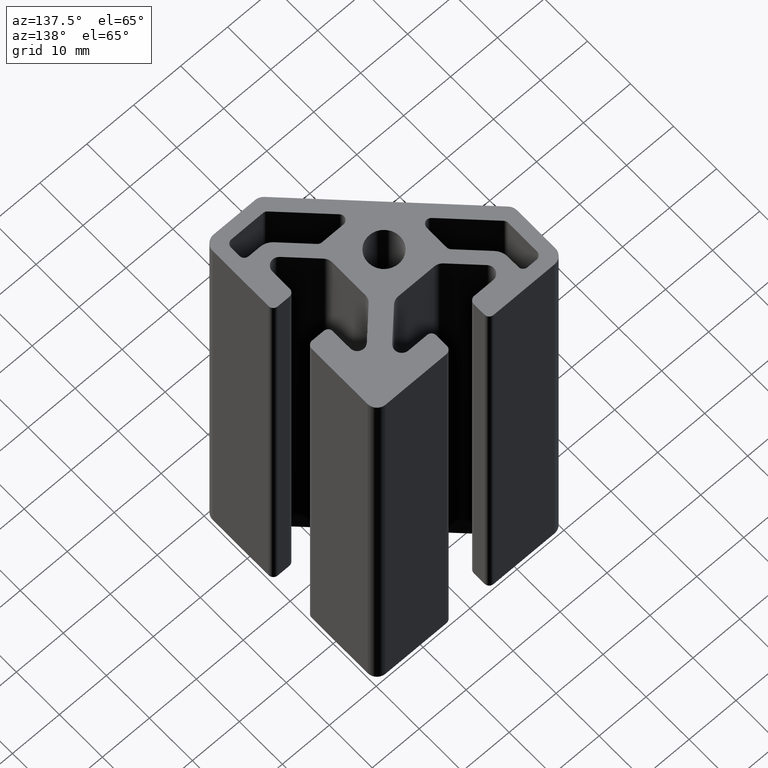
[diagram: clean part render]
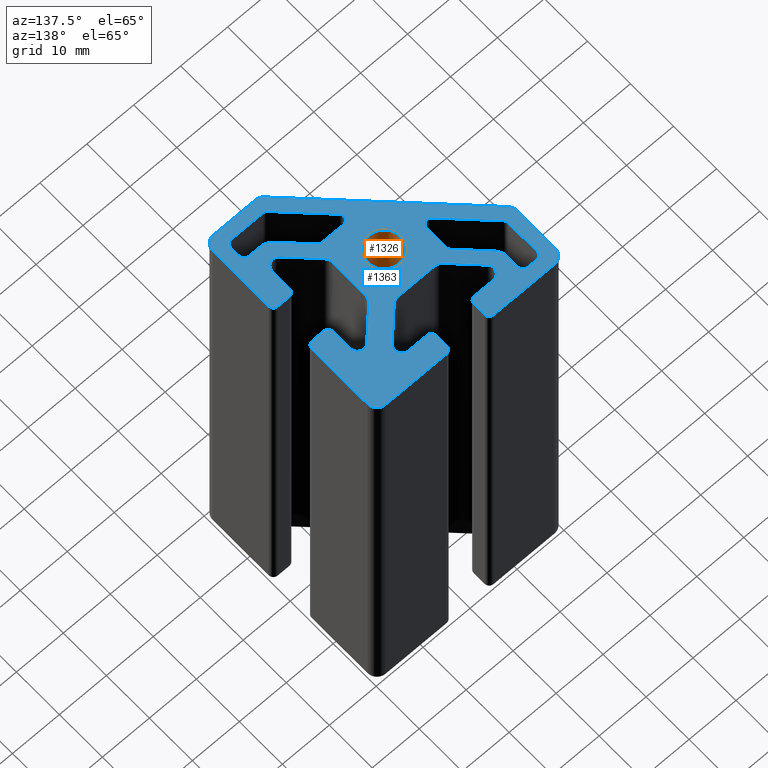
[diagram: same view with the hole feature highlighted: cylindrical wall and planar end face, labeled with their STEP entity ids]
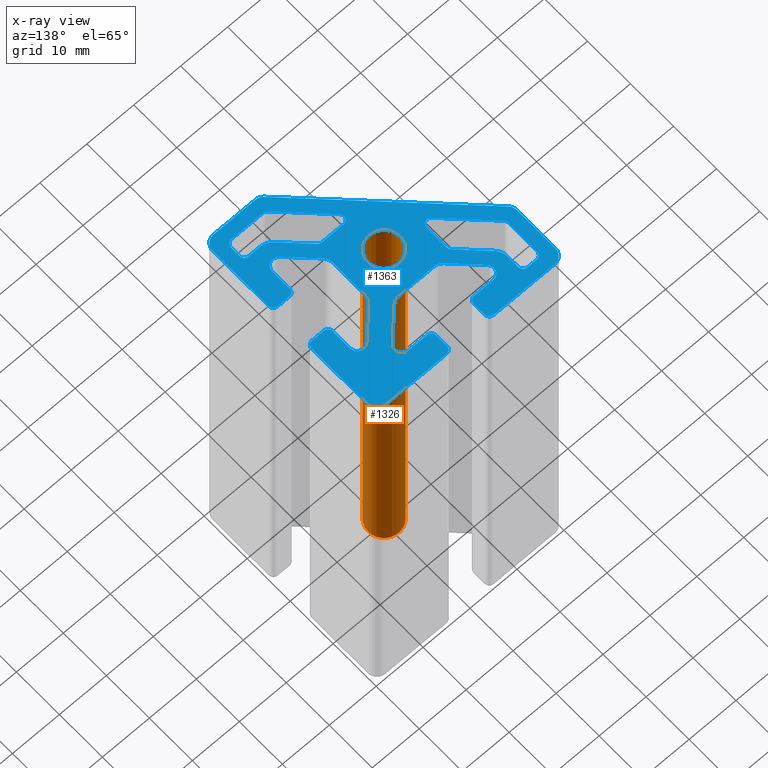
[diagram: x-ray of the same camera — body ghosted, the hole faces saturated]
A machine part, auxiliary view. The highlighted faces form one hole feature of diameter 6.8 mm: the cylindrical wall (entity #1326, orange) and its adjacent planar end face (entity #1363, blue) — they share a circular edge in the B-rep.
The next image is the same camera in x-ray (body ghosted, the hole faces saturated) — the bore reads through the body.
Wall:
#15=FACE_BOUND('',#218,.T.);
#46=CIRCLE('',#1422,3.39999472999694);
#47=CIRCLE('',#1423,3.39999472999694);
#102=CYLINDRICAL_SURFACE('',#1421,3.39999472999694);
#148=FACE_OUTER_BOUND('',#217,.T.);
#217=EDGE_LOOP('',(#963));
#218=EDGE_LOOP('',(#964));
#581=VERTEX_POINT('',#2064);
#582=VERTEX_POINT('',#2066);
#739=EDGE_CURVE('',#581,#581,#46,.T.);
#740=EDGE_CURVE('',#582,#582,#47,.T.);
#963=ORIENTED_EDGE('',*,*,#739,.F.);
#964=ORIENTED_EDGE('',*,*,#740,.F.);
#1326=ADVANCED_FACE('',(#148,#15),#102,.F.);
#1421=AXIS2_PLACEMENT_3D('',#2063,#1656,#1657);
#1422=AXIS2_PLACEMENT_3D('',#2065,#1658,#1659);
#1423=AXIS2_PLACEMENT_3D('',#2067,#1660,#1661);
#1656=DIRECTION('center_axis',(0.,0.,1.));
#1657=DIRECTION('ref_axis',(-1.,0.,0.));
#1658=DIRECTION('center_axis',(0.,0.,-1.));
#1659=DIRECTION('ref_axis',(-1.,0.,0.));
#1660=DIRECTION('center_axis',(0.,0.,1.));
#1661=DIRECTION('ref_axis',(-1.,0.,0.));
#2063=CARTESIAN_POINT('Origin',(0.,0.,0.));
#2064=CARTESIAN_POINT('',(3.39999472999694,-4.16379266320862E-16,100.));
#2065=CARTESIAN_POINT('Origin',(0.,0.,100.));
#2066=CARTESIAN_POINT('',(3.39999472999694,4.16379266320862E-16,0.));
#2067=CARTESIAN_POINT('Origin',(0.,0.,0.));
End face:
#16=FACE_BOUND('',#256,.T.);
#17=FACE_BOUND('',#257,.T.);
#18=FACE_BOUND('',#258,.T.);
#22=CIRCLE('',#1375,2.99999999999999);
#24=CIRCLE('',#1379,0.999999999999996);
#26=CIRCLE('',#1383,1.);
#28=CIRCLE('',#1387,1.00000000000001);
#30=CIRCLE('',#1391,1.);
#32=CIRCLE('',#1395,1.);
#34=CIRCLE('',#1399,1.);
#36=CIRCLE('',#1403,3.);
#38=CIRCLE('',#1407,0.999999999999998);
#40=CIRCLE('',#1411,1.);
#42=CIRCLE('',#1415,0.999999999999999);
#44=CIRCLE('',#1419,1.);
#46=CIRCLE('',#1422,3.39999472999694);
#48=CIRCLE('',#1425,1.);
#50=CIRCLE('',#1428,1.);
#52=CIRCLE('',#1432,1.);
#54=CIRCLE('',#1436,1.4999951119496);
#56=CIRCLE('',#1440,1.99999436835788);
#58=CIRCLE('',#1444,1.99999436835788);
#60=CIRCLE('',#1448,1.4999951119496);
#62=CIRCLE('',#1452,1.00000000000001);
#64=CIRCLE('',#1456,1.);
#66=CIRCLE('',#1460,1.);
#68=CIRCLE('',#1464,1.4999951119496);
#70=CIRCLE('',#1468,1.99999436835787);
#72=CIRCLE('',#1472,1.99999436835787);
#74=CIRCLE('',#1476,1.4999951119496);
#76=CIRCLE('',#1480,1.);
#78=CIRCLE('',#1484,1.);
#80=CIRCLE('',#1487,2.);
#82=CIRCLE('',#1491,1.99999999999999);
#84=CIRCLE('',#1497,2.);
#85=CIRCLE('',#1498,2.);
#86=CIRCLE('',#1499,2.);
#185=FACE_OUTER_BOUND('',#255,.T.);
#255=EDGE_LOOP('',(#1109,#1110,#1111,#1112,#1113,#1114,#1115,#1116,#1117,
#1118,#1119,#1120,#1121,#1122,#1123,#1124,#1125,#1126,#1127,#1128,#1129,
#1130,#1131,#1132,#1133,#1134,#1135,#1136,#1137,#1138,#1139,#1140,#1141,
#1142,#1143,#1144,#1145,#1146,#1147,#1148,#1149,#1150));
#256=EDGE_LOOP('',(#1151));
#257=EDGE_LOOP('',(#1152,#1153,#1154,#1155,#1156,#1157,#1158,#1159,#1160,
#1161,#1162,#1163));
#258=EDGE_LOOP('',(#1164,#1165,#1166,#1167,#1168,#1169,#1170,#1171,#1172,
#1173,#1174,#1175));
#269=LINE('',#1922,#401);
#274=LINE('',#1936,#406);
#278=LINE('',#1948,#410);
#282=LINE('',#1960,#414);
#286=LINE('',#1972,#418);
#290=LINE('',#1984,#422);
#293=LINE('',#1994,#425);
#298=LINE('',#2008,#430);
#302=LINE('',#2020,#434);
#306=LINE('',#2032,#438);
#310=LINE('',#2044,#442);
#314=LINE('',#2056,#446);
#321=LINE('',#2088,#453);
#325=LINE('',#2100,#457);
#329=LINE('',#2112,#461);
#333=LINE('',#2124,#465);
#337=LINE('',#2136,#469);
#341=LINE('',#2148,#473);
#345=LINE('',#2159,#477);
#349=LINE('',#2172,#481);
#353=LINE('',#2184,#485);
#357=LINE('',#2196,#489);
#361=LINE('',#2208,#493);
#365=LINE('',#2220,#497);
#369=LINE('',#2232,#501);
#373=LINE('',#2244,#505);
#379=LINE('',#2265,#511);
#385=LINE('',#2280,#517);
#388=LINE('',#2286,#520);
#391=LINE('',#2292,#523);
#392=LINE('',#2296,#524);
#393=LINE('',#2299,#525);
#394=LINE('',#2302,#526);
#401=VECTOR('',#1514,2.46446609406725);
#406=VECTOR('',#1527,6.82842712474621);
#410=VECTOR('',#1539,4.64463632763488);
#414=VECTOR('',#1551,11.3137077019713);
#418=VECTOR('',#1563,6.7659577983418);
#422=VECTOR('',#1575,1.99999999999999);
#425=VECTOR('',#1586,2.);
#430=VECTOR('',#1599,2.46446609406725);
#434=VECTOR('',#1611,6.8284271247462);
#438=VECTOR('',#1623,4.64463632763487);
#442=VECTOR('',#1635,11.3137077019713);
#446=VECTOR('',#1647,6.76595779834181);
#453=VECTOR('',#1680,2.5);
#457=VECTOR('',#1692,4.05026433249172);
#461=VECTOR('',#1704,6.86397516417904);
#465=VECTOR('',#1716,7.68629616642033);
#469=VECTOR('',#1728,6.86397516417903);
#473=VECTOR('',#1740,4.05026433249172);
#477=VECTOR('',#1752,2.5);
#481=VECTOR('',#1764,2.5);
#485=VECTOR('',#1776,4.05026433249172);
#489=VECTOR('',#1788,6.86397516417903);
#493=VECTOR('',#1800,7.68629616642033);
#497=VECTOR('',#1812,6.86397516417903);
#501=VECTOR('',#1824,4.05026433249172);
#505=VECTOR('',#1836,2.5);
#511=VECTOR('',#1856,38.3431815781836);
#517=VECTOR('',#1870,13.);
#520=VECTOR('',#1875,13.);
#523=VECTOR('',#1880,8.88727820380154);
#524=VECTOR('',#1885,8.88727438379713);
#525=VECTOR('',#1888,13.);
#526=VECTOR('',#1891,13.);
#533=VERTEX_POINT('',#1920);
#534=VERTEX_POINT('',#1921);
#537=VERTEX_POINT('',#1929);
#539=VERTEX_POINT('',#1935);
#541=VERTEX_POINT('',#1941);
#543=VERTEX_POINT('',#1947);
#545=VERTEX_POINT('',#1953);
#547=VERTEX_POINT('',#1959);
#549=VERTEX_POINT('',#1965);
#551=VERTEX_POINT('',#1971);
#553=VERTEX_POINT('',#1977);
#555=VERTEX_POINT('',#1983);
#557=VERTEX_POINT('',#1992);
#558=VERTEX_POINT('',#1993);
#561=VERTEX_POINT('',#2001);
#563=VERTEX_POINT('',#2007);
#565=VERTEX_POINT('',#2013);
#567=VERTEX_POINT('',#2019);
#569=VERTEX_POINT('',#2025);
#571=VERTEX_POINT('',#2031);
#573=VERTEX_POINT('',#2037);
#575=VERTEX_POINT('',#2043);
#577=VERTEX_POINT('',#2049);
#579=VERTEX_POINT('',#2055);
#581=VERTEX_POINT('',#2064);
#583=VERTEX_POINT('',#2069);
#584=VERTEX_POINT('',#2070);
#587=VERTEX_POINT('',#2078);
#588=VERTEX_POINT('',#2079);
#591=VERTEX_POINT('',#2087);
#593=VERTEX_POINT('',#2093);
#595=VERTEX_POINT('',#2099);
#597=VERTEX_POINT('',#2105);
#599=VERTEX_POINT('',#2111);
#601=VERTEX_POINT('',#2117);
#603=VERTEX_POINT('',#2123);
#605=VERTEX_POINT('',#2129);
#607=VERTEX_POINT('',#2135);
#609=VERTEX_POINT('',#2141);
#611=VERTEX_POINT('',#2147);
#613=VERTEX_POINT('',#2153);
#615=VERTEX_POINT('',#2162);
#616=VERTEX_POINT('',#2163);
#619=VERTEX_POINT('',#2171);
#621=VERTEX_POINT('',#2177);
#623=VERTEX_POINT('',#2183);
#625=VERTEX_POINT('',#2189);
#627=VERTEX_POINT('',#2195);
#629=VERTEX_POINT('',#2201);
#631=VERTEX_POINT('',#2207);
#633=VERTEX_POINT('',#2213);
#635=VERTEX_POINT('',#2219);
#637=VERTEX_POINT('',#2225);
#639=VERTEX_POINT('',#2231);
#641=VERTEX_POINT('',#2237);
#643=VERTEX_POINT('',#2243);
#645=VERTEX_POINT('',#2249);
#647=VERTEX_POINT('',#2255);
#648=VERTEX_POINT('',#2256);
#651=VERTEX_POINT('',#2264);
#653=VERTEX_POINT('',#2270);
#656=VERTEX_POINT('',#2278);
#658=VERTEX_POINT('',#2284);
#660=VERTEX_POINT('',#2290);
#661=VERTEX_POINT('',#2294);
#662=VERTEX_POINT('',#2297);
#663=VERTEX_POINT('',#2300);
#667=EDGE_CURVE('',#533,#534,#269,.T.);
#671=EDGE_CURVE('',#534,#537,#22,.T.);
#674=EDGE_CURVE('',#537,#539,#274,.T.);
#677=EDGE_CURVE('',#539,#541,#24,.T.);
#680=EDGE_CURVE('',#541,#543,#278,.T.);
#683=EDGE_CURVE('',#543,#545,#26,.T.);
#686=EDGE_CURVE('',#545,#547,#282,.T.);
#689=EDGE_CURVE('',#547,#549,#28,.T.);
#692=EDGE_CURVE('',#549,#551,#286,.T.);
#695=EDGE_CURVE('',#551,#553,#30,.T.);
#698=EDGE_CURVE('',#553,#555,#290,.T.);
#701=EDGE_CURVE('',#555,#533,#32,.T.);
#703=EDGE_CURVE('',#557,#558,#293,.T.);
#707=EDGE_CURVE('',#561,#557,#34,.T.);
#710=EDGE_CURVE('',#563,#561,#298,.T.);
#713=EDGE_CURVE('',#565,#563,#36,.T.);
#716=EDGE_CURVE('',#567,#565,#302,.T.);
#719=EDGE_CURVE('',#569,#567,#38,.T.);
#722=EDGE_CURVE('',#571,#569,#306,.T.);
#725=EDGE_CURVE('',#573,#571,#40,.T.);
#728=EDGE_CURVE('',#575,#573,#310,.T.);
#731=EDGE_CURVE('',#577,#575,#42,.T.);
#734=EDGE_CURVE('',#579,#577,#314,.T.);
#737=EDGE_CURVE('',#558,#579,#44,.T.);
#739=EDGE_CURVE('',#581,#581,#46,.T.);
#741=EDGE_CURVE('',#583,#584,#48,.T.);
#745=EDGE_CURVE('',#587,#588,#50,.T.);
#749=EDGE_CURVE('',#591,#587,#321,.T.);
#752=EDGE_CURVE('',#593,#591,#52,.T.);
#755=EDGE_CURVE('',#595,#593,#325,.T.);
#758=EDGE_CURVE('',#597,#595,#54,.T.);
#761=EDGE_CURVE('',#599,#597,#329,.T.);
#764=EDGE_CURVE('',#601,#599,#56,.T.);
#767=EDGE_CURVE('',#603,#601,#333,.T.);
#770=EDGE_CURVE('',#605,#603,#58,.T.);
#773=EDGE_CURVE('',#607,#605,#337,.T.);
#776=EDGE_CURVE('',#609,#607,#60,.T.);
#779=EDGE_CURVE('',#611,#609,#341,.T.);
#782=EDGE_CURVE('',#613,#611,#62,.T.);
#785=EDGE_CURVE('',#584,#613,#345,.T.);
#787=EDGE_CURVE('',#615,#616,#64,.T.);
#791=EDGE_CURVE('',#616,#619,#349,.T.);
#794=EDGE_CURVE('',#619,#621,#66,.T.);
#797=EDGE_CURVE('',#621,#623,#353,.T.);
#800=EDGE_CURVE('',#623,#625,#68,.T.);
#803=EDGE_CURVE('',#625,#627,#357,.T.);
#806=EDGE_CURVE('',#627,#629,#70,.T.);
#809=EDGE_CURVE('',#629,#631,#361,.T.);
#812=EDGE_CURVE('',#631,#633,#72,.T.);
#815=EDGE_CURVE('',#633,#635,#365,.T.);
#818=EDGE_CURVE('',#635,#637,#74,.T.);
#821=EDGE_CURVE('',#637,#639,#369,.T.);
#824=EDGE_CURVE('',#639,#641,#76,.T.);
#827=EDGE_CURVE('',#641,#643,#373,.T.);
#830=EDGE_CURVE('',#643,#645,#78,.T.);
#833=EDGE_CURVE('',#647,#648,#80,.T.);
#837=EDGE_CURVE('',#651,#647,#379,.T.);
#840=EDGE_CURVE('',#653,#651,#82,.T.);
#845=EDGE_CURVE('',#656,#588,#385,.T.);
#848=EDGE_CURVE('',#658,#645,#388,.T.);
#851=EDGE_CURVE('',#660,#648,#391,.T.);
#852=EDGE_CURVE('',#661,#656,#84,.T.);
#853=EDGE_CURVE('',#653,#661,#392,.T.);
#854=EDGE_CURVE('',#662,#660,#85,.T.);
#855=EDGE_CURVE('',#615,#662,#393,.T.);
#856=EDGE_CURVE('',#663,#658,#86,.T.);
#857=EDGE_CURVE('',#583,#663,#394,.T.);
#1109=ORIENTED_EDGE('',*,*,#741,.T.);
#1110=ORIENTED_EDGE('',*,*,#785,.T.);
#1111=ORIENTED_EDGE('',*,*,#782,.T.);
#1112=ORIENTED_EDGE('',*,*,#779,.T.);
#1113=ORIENTED_EDGE('',*,*,#776,.T.);
#1114=ORIENTED_EDGE('',*,*,#773,.T.);
#1115=ORIENTED_EDGE('',*,*,#770,.T.);
#1116=ORIENTED_EDGE('',*,*,#767,.T.);
#1117=ORIENTED_EDGE('',*,*,#764,.T.);
#1118=ORIENTED_EDGE('',*,*,#761,.T.);
#1119=ORIENTED_EDGE('',*,*,#758,.T.);
#1120=ORIENTED_EDGE('',*,*,#755,.T.);
#1121=ORIENTED_EDGE('',*,*,#752,.T.);
#1122=ORIENTED_EDGE('',*,*,#749,.T.);
#1123=ORIENTED_EDGE('',*,*,#745,.T.);
#1124=ORIENTED_EDGE('',*,*,#845,.F.);
#1125=ORIENTED_EDGE('',*,*,#852,.F.);
#1126=ORIENTED_EDGE('',*,*,#853,.F.);
#1127=ORIENTED_EDGE('',*,*,#840,.T.);
#1128=ORIENTED_EDGE('',*,*,#837,.T.);
#1129=ORIENTED_EDGE('',*,*,#833,.T.);
#1130=ORIENTED_EDGE('',*,*,#851,.F.);
#1131=ORIENTED_EDGE('',*,*,#854,.F.);
#1132=ORIENTED_EDGE('',*,*,#855,.F.);
#1133=ORIENTED_EDGE('',*,*,#787,.T.);
#1134=ORIENTED_EDGE('',*,*,#791,.T.);
#1135=ORIENTED_EDGE('',*,*,#794,.T.);
#1136=ORIENTED_EDGE('',*,*,#797,.T.);
#1137=ORIENTED_EDGE('',*,*,#800,.T.);
#1138=ORIENTED_EDGE('',*,*,#803,.T.);
#1139=ORIENTED_EDGE('',*,*,#806,.T.);
#1140=ORIENTED_EDGE('',*,*,#809,.T.);
#1141=ORIENTED_EDGE('',*,*,#812,.T.);
#1142=ORIENTED_EDGE('',*,*,#815,.T.);
#1143=ORIENTED_EDGE('',*,*,#818,.T.);
#1144=ORIENTED_EDGE('',*,*,#821,.T.);
#1145=ORIENTED_EDGE('',*,*,#824,.T.);
#1146=ORIENTED_EDGE('',*,*,#827,.T.);
#1147=ORIENTED_EDGE('',*,*,#830,.T.);
#1148=ORIENTED_EDGE('',*,*,#848,.F.);
#1149=ORIENTED_EDGE('',*,*,#856,.F.);
#1150=ORIENTED_EDGE('',*,*,#857,.F.);
#1151=ORIENTED_EDGE('',*,*,#739,.T.);
#1152=ORIENTED_EDGE('',*,*,#703,.T.);
#1153=ORIENTED_EDGE('',*,*,#737,.T.);
#1154=ORIENTED_EDGE('',*,*,#734,.T.);
#1155=ORIENTED_EDGE('',*,*,#731,.T.);
#1156=ORIENTED_EDGE('',*,*,#728,.T.);
#1157=ORIENTED_EDGE('',*,*,#725,.T.);
#1158=ORIENTED_EDGE('',*,*,#722,.T.);
#1159=ORIENTED_EDGE('',*,*,#719,.T.);
#1160=ORIENTED_EDGE('',*,*,#716,.T.);
#1161=ORIENTED_EDGE('',*,*,#713,.T.);
#1162=ORIENTED_EDGE('',*,*,#710,.T.);
#1163=ORIENTED_EDGE('',*,*,#707,.T.);
#1164=ORIENTED_EDGE('',*,*,#667,.T.);
#1165=ORIENTED_EDGE('',*,*,#671,.T.);
#1166=ORIENTED_EDGE('',*,*,#674,.T.);
#1167=ORIENTED_EDGE('',*,*,#677,.T.);
#1168=ORIENTED_EDGE('',*,*,#680,.T.);
#1169=ORIENTED_EDGE('',*,*,#683,.T.);
#1170=ORIENTED_EDGE('',*,*,#686,.T.);
#1171=ORIENTED_EDGE('',*,*,#689,.T.);
#1172=ORIENTED_EDGE('',*,*,#692,.T.);
#1173=ORIENTED_EDGE('',*,*,#695,.T.);
#1174=ORIENTED_EDGE('',*,*,#698,.T.);
#1175=ORIENTED_EDGE('',*,*,#701,.T.);
#1297=PLANE('',#1496);
#1363=ADVANCED_FACE('',(#185,#16,#17,#18),#1297,.T.);
#1375=AXIS2_PLACEMENT_3D('',#1930,#1520,#1521);
#1379=AXIS2_PLACEMENT_3D('',#1942,#1532,#1533);
#1383=AXIS2_PLACEMENT_3D('',#1954,#1544,#1545);
#1387=AXIS2_PLACEMENT_3D('',#1966,#1556,#1557);
#1391=AXIS2_PLACEMENT_3D('',#1978,#1568,#1569);
#1395=AXIS2_PLACEMENT_3D('',#1989,#1580,#1581);
#1399=AXIS2_PLACEMENT_3D('',#2002,#1592,#1593);
#1403=AXIS2_PLACEMENT_3D('',#2014,#1604,#1605);
#1407=AXIS2_PLACEMENT_3D('',#2026,#1616,#1617);
#1411=AXIS2_PLACEMENT_3D('',#2038,#1628,#1629);
#1415=AXIS2_PLACEMENT_3D('',#2050,#1640,#1641);
#1419=AXIS2_PLACEMENT_3D('',#2061,#1652,#1653);
#1422=AXIS2_PLACEMENT_3D('',#2065,#1658,#1659);
#1425=AXIS2_PLACEMENT_3D('',#2071,#1664,#1665);
#1428=AXIS2_PLACEMENT_3D('',#2080,#1672,#1673);
#1432=AXIS2_PLACEMENT_3D('',#2094,#1685,#1686);
#1436=AXIS2_PLACEMENT_3D('',#2106,#1697,#1698);
#1440=AXIS2_PLACEMENT_3D('',#2118,#1709,#1710);
#1444=AXIS2_PLACEMENT_3D('',#2130,#1721,#1722);
#1448=AXIS2_PLACEMENT_3D('',#2142,#1733,#1734);
#1452=AXIS2_PLACEMENT_3D('',#2154,#1745,#1746);
#1456=AXIS2_PLACEMENT_3D('',#2164,#1756,#1757);
#1460=AXIS2_PLACEMENT_3D('',#2178,#1769,#1770);
#1464=AXIS2_PLACEMENT_3D('',#2190,#1781,#1782);
#1468=AXIS2_PLACEMENT_3D('',#2202,#1793,#1794);
#1472=AXIS2_PLACEMENT_3D('',#2214,#1805,#1806);
#1476=AXIS2_PLACEMENT_3D('',#2226,#1817,#1818);
#1480=AXIS2_PLACEMENT_3D('',#2238,#1829,#1830);
#1484=AXIS2_PLACEMENT_3D('',#2250,#1841,#1842);
#1487=AXIS2_PLACEMENT_3D('',#2257,#1848,#1849);
#1491=AXIS2_PLACEMENT_3D('',#2271,#1861,#1862);
#1496=AXIS2_PLACEMENT_3D('',#2293,#1881,#1882);
#1497=AXIS2_PLACEMENT_3D('',#2295,#1883,#1884);
#1498=AXIS2_PLACEMENT_3D('',#2298,#1886,#1887);
#1499=AXIS2_PLACEMENT_3D('',#2301,#1889,#1890);
#1514=DIRECTION('',(3.60393848322057E-15,-1.,0.));
#1520=DIRECTION('center_axis',(0.,0.,1.));
#1521=DIRECTION('ref_axis',(1.,-4.44089209850064E-15,0.));
#1527=DIRECTION('',(0.707106781186548,-0.707106781186547,0.));
#1532=DIRECTION('center_axis',(0.,0.,-1.));
#1533=DIRECTION('ref_axis',(1.,0.,0.));
#1539=DIRECTION('',(4.78066718816928E-16,-1.,0.));
#1544=DIRECTION('center_axis',(0.,0.,-1.));
#1545=DIRECTION('ref_axis',(-0.707106731373201,-0.70710683099989,0.));
#1551=DIRECTION('',(-0.707106830999893,0.707106731373199,0.));
#1556=DIRECTION('center_axis',(0.,0.,-1.));
#1557=DIRECTION('ref_axis',(-1.,0.,0.));
#1563=DIRECTION('',(0.,1.,0.));
#1568=DIRECTION('center_axis',(0.,0.,-1.));
#1569=DIRECTION('ref_axis',(0.,1.,0.));
#1575=DIRECTION('',(1.,2.22044604925033E-15,0.));
#1580=DIRECTION('center_axis',(0.,0.,-1.));
#1581=DIRECTION('ref_axis',(1.,0.,0.));
#1586=DIRECTION('',(0.,-1.,0.));
#1592=DIRECTION('center_axis',(0.,0.,-1.));
#1593=DIRECTION('ref_axis',(-1.,-2.22044604925031E-15,0.));
#1599=DIRECTION('',(1.,0.,0.));
#1604=DIRECTION('center_axis',(0.,0.,1.));
#1605=DIRECTION('ref_axis',(-0.707106781186548,-0.707106781186547,0.));
#1611=DIRECTION('',(0.707106781186548,-0.707106781186547,0.));
#1616=DIRECTION('center_axis',(0.,0.,-1.));
#1617=DIRECTION('ref_axis',(-0.707106781186548,-0.707106781186548,0.));
#1623=DIRECTION('',(1.,-4.78066718816929E-16,0.));
#1628=DIRECTION('center_axis',(0.,0.,-1.));
#1629=DIRECTION('ref_axis',(-4.44089209850062E-15,-1.,0.));
#1635=DIRECTION('',(-0.707106731373199,0.707106830999893,0.));
#1640=DIRECTION('center_axis',(0.,0.,-1.));
#1641=DIRECTION('ref_axis',(0.707106830999893,0.707106731373199,0.));
#1647=DIRECTION('',(-1.,6.5635823202873E-16,0.));
#1652=DIRECTION('center_axis',(0.,0.,-1.));
#1653=DIRECTION('ref_axis',(-2.22044604925031E-15,1.,0.));
#1658=DIRECTION('center_axis',(0.,0.,-1.));
#1659=DIRECTION('ref_axis',(-1.,0.,0.));
#1664=DIRECTION('center_axis',(0.,0.,1.));
#1665=DIRECTION('ref_axis',(4.4408920985006E-15,-1.,0.));
#1672=DIRECTION('center_axis',(0.,0.,1.));
#1673=DIRECTION('ref_axis',(-1.,0.,0.));
#1680=DIRECTION('',(0.,1.,0.));
#1685=DIRECTION('center_axis',(0.,0.,1.));
#1686=DIRECTION('ref_axis',(0.,1.,0.));
#1692=DIRECTION('',(1.,0.,0.));
#1697=DIRECTION('center_axis',(0.,0.,-1.));
#1698=DIRECTION('ref_axis',(0.,1.,0.));
#1704=DIRECTION('',(-0.707106781186547,0.707106781186548,0.));
#1709=DIRECTION('center_axis',(0.,0.,-1.));
#1710=DIRECTION('ref_axis',(-0.707106781186546,-0.707106781186549,0.));
#1716=DIRECTION('',(-1.,0.,0.));
#1721=DIRECTION('center_axis',(0.,0.,-1.));
#1722=DIRECTION('ref_axis',(0.,-1.,0.));
#1728=DIRECTION('',(-0.707106781186547,-0.707106781186548,0.));
#1733=DIRECTION('center_axis',(0.,0.,-1.));
#1734=DIRECTION('ref_axis',(0.707106781186549,-0.707106781186546,0.));
#1740=DIRECTION('',(1.,2.19289001109149E-15,0.));
#1745=DIRECTION('center_axis',(0.,0.,1.));
#1746=DIRECTION('ref_axis',(1.,0.,0.));
#1752=DIRECTION('',(0.,-1.,0.));
#1756=DIRECTION('center_axis',(0.,0.,1.));
#1757=DIRECTION('ref_axis',(-1.,0.,0.));
#1764=DIRECTION('',(-1.,1.77635683940025E-15,0.));
#1769=DIRECTION('center_axis',(0.,0.,1.));
#1770=DIRECTION('ref_axis',(0.,-1.,0.));
#1776=DIRECTION('',(-1.09644500554575E-15,-1.,0.));
#1781=DIRECTION('center_axis',(0.,0.,-1.));
#1782=DIRECTION('ref_axis',(-0.707106781186547,-0.707106781186548,0.));
#1788=DIRECTION('',(-0.707106781186548,0.707106781186547,0.));
#1793=DIRECTION('center_axis',(0.,0.,-1.));
#1794=DIRECTION('ref_axis',(-1.,2.22045230164668E-15,0.));
#1800=DIRECTION('',(-2.88883748579834E-16,1.,0.));
#1805=DIRECTION('center_axis',(0.,0.,-1.));
#1806=DIRECTION('ref_axis',(-0.707106781186548,0.707106781186548,0.));
#1812=DIRECTION('',(0.707106781186548,0.707106781186547,0.));
#1817=DIRECTION('center_axis',(0.,0.,-1.));
#1818=DIRECTION('ref_axis',(1.,0.,0.));
#1824=DIRECTION('',(-1.09644500554575E-15,-1.,0.));
#1829=DIRECTION('center_axis',(0.,0.,1.));
#1830=DIRECTION('ref_axis',(1.,0.,0.));
#1836=DIRECTION('',(1.,0.,0.));
#1841=DIRECTION('center_axis',(0.,0.,1.));
#1842=DIRECTION('ref_axis',(0.,1.,0.));
#1848=DIRECTION('center_axis',(0.,0.,1.));
#1849=DIRECTION('ref_axis',(0.707106830999893,0.707106731373199,0.));
#1856=DIRECTION('',(0.707106731373199,-0.707106830999893,0.));
#1861=DIRECTION('center_axis',(0.,0.,1.));
#1862=DIRECTION('ref_axis',(1.,2.22044604925031E-15,0.));
#1870=DIRECTION('',(1.,0.,0.));
#1875=DIRECTION('',(0.,-1.,0.));
#1880=DIRECTION('',(-1.,0.,0.));
#1881=DIRECTION('center_axis',(0.,0.,1.));
#1882=DIRECTION('ref_axis',(1.,0.,0.));
#1883=DIRECTION('center_axis',(0.,0.,-1.));
#1884=DIRECTION('ref_axis',(0.,-1.,0.));
#1885=DIRECTION('',(0.,1.,0.));
#1886=DIRECTION('center_axis',(0.,0.,-1.));
#1887=DIRECTION('ref_axis',(0.,1.,0.));
#1888=DIRECTION('',(0.,-1.,0.));
#1889=DIRECTION('center_axis',(0.,0.,-1.));
#1890=DIRECTION('ref_axis',(-1.,0.,0.));
#1891=DIRECTION('',(1.,0.,0.));
#1920=CARTESIAN_POINT('',(-13.5,16.5,100.));
#1921=CARTESIAN_POINT('',(-13.5,14.0355339059327,100.));
#1922=CARTESIAN_POINT('',(-13.5,7.01776695296635,100.));
#1929=CARTESIAN_POINT('',(-12.6213203435596,11.9142135623731,100.));
#1930=CARTESIAN_POINT('Origin',(-10.5,14.0355339059327,100.));
#1935=CARTESIAN_POINT('',(-7.79289321881345,7.0857864376269,100.));
#1936=CARTESIAN_POINT('',(-4.07322330470336,3.36611652351682,100.));
#1941=CARTESIAN_POINT('',(-7.49999999999999,6.37867965644036,100.));
#1942=CARTESIAN_POINT('Origin',(-8.49999999999999,6.37867965644036,100.));
#1947=CARTESIAN_POINT('',(-7.49999999999999,1.73404332880548,100.));
#1948=CARTESIAN_POINT('',(-7.49999999999999,0.867021664402739,100.));
#1953=CARTESIAN_POINT('',(-9.20710673137319,1.02693649780559,100.));
#1954=CARTESIAN_POINT('Origin',(-8.49999999999999,1.73404332880548,100.));
#1959=CARTESIAN_POINT('',(-17.2071067313732,9.0269353706583,100.));
#1960=CARTESIAN_POINT('',(-10.6485955997733,2.46842516310942,100.));
#1965=CARTESIAN_POINT('',(-17.5,9.7340422016582,100.));
#1966=CARTESIAN_POINT('Origin',(-16.5,9.7340422016582,100.));
#1971=CARTESIAN_POINT('',(-17.5,16.5,100.));
#1972=CARTESIAN_POINT('',(-17.5,8.25,100.));
#1977=CARTESIAN_POINT('',(-16.5,17.5,100.));
#1978=CARTESIAN_POINT('Origin',(-16.5,16.5,100.));
#1983=CARTESIAN_POINT('',(-14.5,17.5,100.));
#1984=CARTESIAN_POINT('',(-7.25000000000002,17.5,100.));
#1989=CARTESIAN_POINT('Origin',(-14.5,16.5,100.));
#1992=CARTESIAN_POINT('',(17.5,-14.5,100.));
#1993=CARTESIAN_POINT('',(17.5,-16.5,100.));
#1994=CARTESIAN_POINT('',(17.5,-8.25,100.));
#2001=CARTESIAN_POINT('',(16.5,-13.5,100.));
#2002=CARTESIAN_POINT('Origin',(16.5,-14.5,100.));
#2007=CARTESIAN_POINT('',(14.0355339059327,-13.5,100.));
#2008=CARTESIAN_POINT('',(8.25,-13.5,100.));
#2013=CARTESIAN_POINT('',(11.9142135623731,-12.6213203435596,100.));
#2014=CARTESIAN_POINT('Origin',(14.0355339059327,-10.5,100.));
#2019=CARTESIAN_POINT('',(7.0857864376269,-7.79289321881344,100.));
#2020=CARTESIAN_POINT('',(5.78033008588991,-6.48743686707646,100.));
#2025=CARTESIAN_POINT('',(6.37867965644035,-7.49999999999999,100.));
#2026=CARTESIAN_POINT('Origin',(6.37867965644035,-8.49999999999999,100.));
#2031=CARTESIAN_POINT('',(1.73404332880549,-7.49999999999999,100.));
#2032=CARTESIAN_POINT('',(3.18933982822018,-7.49999999999999,100.));
#2037=CARTESIAN_POINT('',(1.02693649780559,-9.20710673137319,100.));
#2038=CARTESIAN_POINT('Origin',(1.73404332880548,-8.49999999999999,100.));
#2043=CARTESIAN_POINT('',(9.0269353706583,-17.2071067313732,100.));
#2044=CARTESIAN_POINT('',(-1.53157427331694,-6.64859559977331,100.));
#2049=CARTESIAN_POINT('',(9.73404220165819,-17.5,100.));
#2050=CARTESIAN_POINT('Origin',(9.73404220165819,-16.5,100.));
#2055=CARTESIAN_POINT('',(16.5,-17.5,100.));
#2056=CARTESIAN_POINT('',(4.86702110082909,-17.5,100.));
#2061=CARTESIAN_POINT('Origin',(16.5,-16.5,100.));
#2064=CARTESIAN_POINT('',(3.39999472999694,-4.16379266320862E-16,100.));
#2065=CARTESIAN_POINT('Origin',(0.,0.,100.));
#2069=CARTESIAN_POINT('',(5.,20.,100.));
#2070=CARTESIAN_POINT('',(4.,19.,100.));
#2071=CARTESIAN_POINT('Origin',(5.,19.,100.));
#2078=CARTESIAN_POINT('',(-4.,19.,100.));
#2079=CARTESIAN_POINT('',(-5.,20.,100.));
#2080=CARTESIAN_POINT('Origin',(-5.,19.,100.));
#2087=CARTESIAN_POINT('',(-4.,16.5,100.));
#2088=CARTESIAN_POINT('',(-4.,9.5,100.));
#2093=CARTESIAN_POINT('',(-5.,15.5,100.));
#2094=CARTESIAN_POINT('Origin',(-5.,16.5,100.));
#2099=CARTESIAN_POINT('',(-9.05026433249173,15.5,100.));
#2100=CARTESIAN_POINT('',(-2.5,15.5,100.));
#2105=CARTESIAN_POINT('',(-10.110921047898,12.9393481726442,100.));
#2106=CARTESIAN_POINT('Origin',(-9.05026433249173,14.0000048880504,100.));
#2111=CARTESIAN_POINT('',(-5.25735766341092,8.08578478815711,100.));
#2112=CARTESIAN_POINT('',(-4.34835374276244,7.17678086750863,100.));
#2117=CARTESIAN_POINT('',(-3.84314808321017,7.5,100.));
#2118=CARTESIAN_POINT('Origin',(-3.84314808321017,9.49999436835787,100.));
#2123=CARTESIAN_POINT('',(3.84314808321017,7.5,100.));
#2124=CARTESIAN_POINT('',(-1.92157404160508,7.5,100.));
#2129=CARTESIAN_POINT('',(5.25735766341092,8.08578478815711,100.));
#2130=CARTESIAN_POINT('Origin',(3.84314808321017,9.49999436835787,100.));
#2135=CARTESIAN_POINT('',(10.110921047898,12.9393481726442,100.));
#2136=CARTESIAN_POINT('',(1.92157205051892,4.7499991752651,100.));
#2141=CARTESIAN_POINT('',(9.05026433249173,15.5,100.));
#2142=CARTESIAN_POINT('Origin',(9.05026433249172,14.0000048880504,100.));
#2147=CARTESIAN_POINT('',(5.,15.5,100.));
#2148=CARTESIAN_POINT('',(4.52513216624584,15.5,100.));
#2153=CARTESIAN_POINT('',(4.,16.5,100.));
#2154=CARTESIAN_POINT('Origin',(5.00000000000001,16.5,100.));
#2159=CARTESIAN_POINT('',(4.,8.25,100.));
#2162=CARTESIAN_POINT('',(20.,-5.,100.));
#2163=CARTESIAN_POINT('',(19.,-4.,100.));
#2164=CARTESIAN_POINT('Origin',(19.,-5.,100.));
#2171=CARTESIAN_POINT('',(16.5,-3.99999999999999,100.));
#2172=CARTESIAN_POINT('',(8.24999999999999,-3.99999999999998,100.));
#2177=CARTESIAN_POINT('',(15.5,-5.,100.));
#2178=CARTESIAN_POINT('Origin',(16.5,-5.,100.));
#2183=CARTESIAN_POINT('',(15.5,-9.05026433249172,100.));
#2184=CARTESIAN_POINT('',(15.5,-4.52513216624587,100.));
#2189=CARTESIAN_POINT('',(12.9393481726442,-10.110921047898,100.));
#2190=CARTESIAN_POINT('Origin',(14.0000048880504,-9.05026433249172,100.));
#2195=CARTESIAN_POINT('',(8.08578478815711,-5.25735766341092,100.));
#2196=CARTESIAN_POINT('',(4.7499991752651,-1.92157205051891,100.));
#2201=CARTESIAN_POINT('',(7.5,-3.84314808321016,100.));
#2202=CARTESIAN_POINT('Origin',(9.49999436835787,-3.84314808321017,100.));
#2207=CARTESIAN_POINT('',(7.5,3.84314808321017,100.));
#2208=CARTESIAN_POINT('',(7.5,1.92157404160509,100.));
#2213=CARTESIAN_POINT('',(8.08578478815711,5.25735766341093,100.));
#2214=CARTESIAN_POINT('Origin',(9.49999436835787,3.84314808321017,100.));
#2219=CARTESIAN_POINT('',(12.9393481726442,10.110921047898,100.));
#2220=CARTESIAN_POINT('',(7.17678086750862,4.34835374276244,100.));
#2225=CARTESIAN_POINT('',(15.5,9.05026433249172,100.));
#2226=CARTESIAN_POINT('Origin',(14.0000048880504,9.05026433249172,100.));
#2231=CARTESIAN_POINT('',(15.5,5.,100.));
#2232=CARTESIAN_POINT('',(15.5,2.49999999999999,100.));
#2237=CARTESIAN_POINT('',(16.5,4.,100.));
#2238=CARTESIAN_POINT('Origin',(16.5,5.,100.));
#2243=CARTESIAN_POINT('',(19.,4.,100.));
#2244=CARTESIAN_POINT('',(9.5,4.,100.));
#2249=CARTESIAN_POINT('',(20.,5.,100.));
#2250=CARTESIAN_POINT('Origin',(19.,5.,100.));
#2255=CARTESIAN_POINT('',(7.69850813419867,-19.4142134627464,100.));
#2256=CARTESIAN_POINT('',(9.11272179619846,-20.,100.));
#2257=CARTESIAN_POINT('Origin',(9.11272179619846,-18.,100.));
#2264=CARTESIAN_POINT('',(-19.4142136619998,7.69851215345648,100.));
#2265=CARTESIAN_POINT('',(0.92032800612974,-12.6360323796764,100.));
#2270=CARTESIAN_POINT('',(-20.,9.11272561620287,100.));
#2271=CARTESIAN_POINT('Origin',(-18.,9.11272561620287,100.));
#2278=CARTESIAN_POINT('',(-18.,20.,100.));
#2280=CARTESIAN_POINT('',(9.,20.,100.));
#2284=CARTESIAN_POINT('',(20.,18.,100.));
#2286=CARTESIAN_POINT('',(20.,-9.,100.));
#2290=CARTESIAN_POINT('',(18.,-20.,100.));
#2292=CARTESIAN_POINT('',(-9.,-20.,100.));
#2293=CARTESIAN_POINT('Origin',(0.,0.,100.));
#2294=CARTESIAN_POINT('',(-20.,18.,100.));
#2295=CARTESIAN_POINT('Origin',(-18.,18.,100.));
#2296=CARTESIAN_POINT('',(-20.,9.,100.));
#2297=CARTESIAN_POINT('',(20.,-18.,100.));
#2298=CARTESIAN_POINT('Origin',(18.,-18.,100.));
#2299=CARTESIAN_POINT('',(20.,-9.,100.));
#2300=CARTESIAN_POINT('',(18.,20.,100.));
#2301=CARTESIAN_POINT('Origin',(18.,18.,100.));
#2302=CARTESIAN_POINT('',(9.,20.,100.));